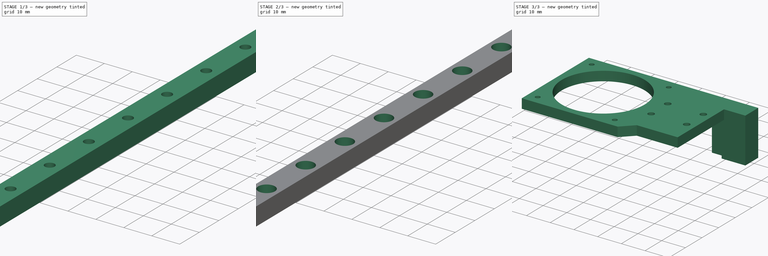
[diagram: build sequence overview — one tinted view per stage of 3, left to right]
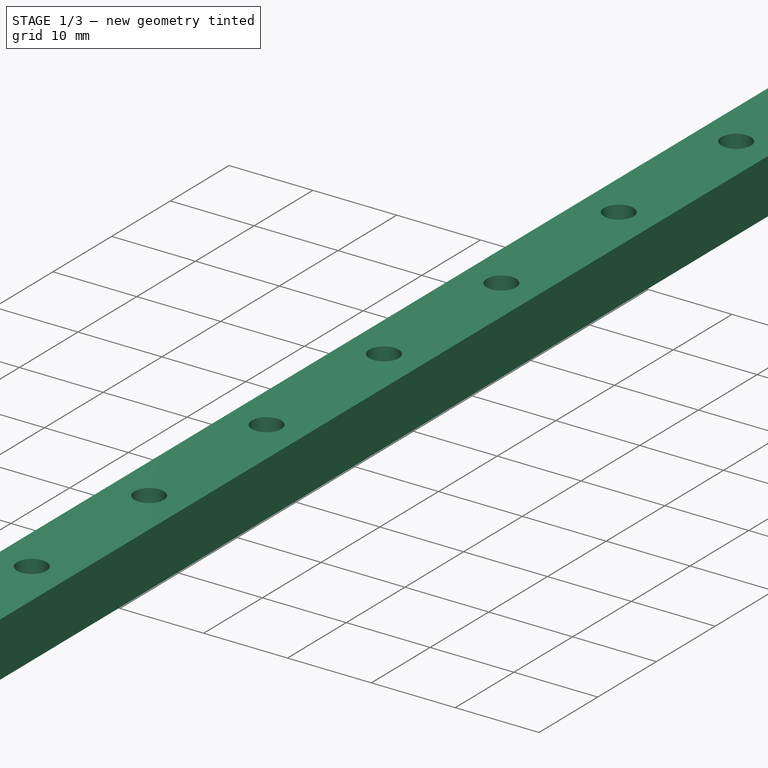
[diagram: stage 1 of 3 — iso view after this stage's code; geometry added in this stage tinted green]
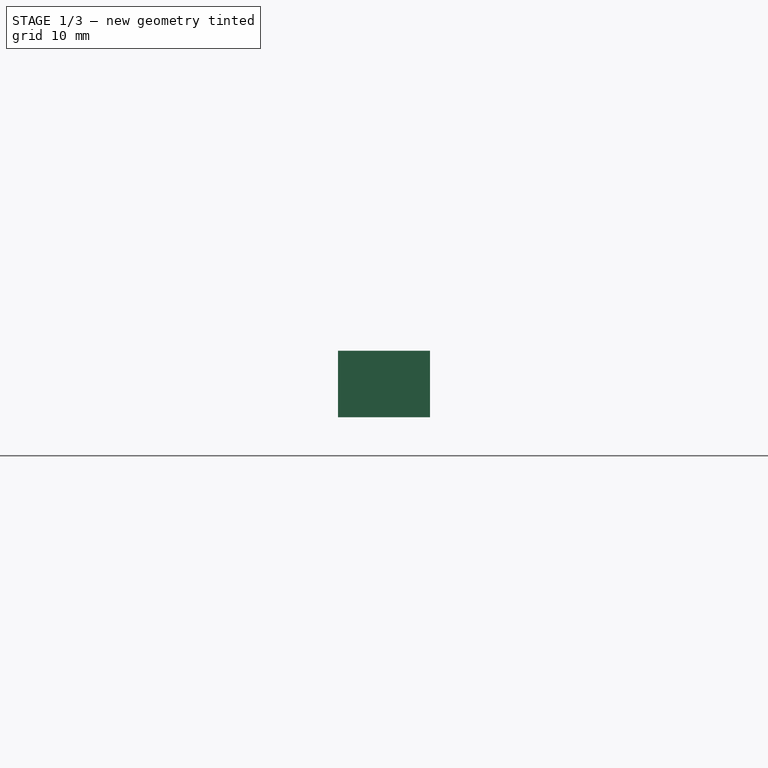
[diagram: stage 1 of 3 — front view after this stage's code; geometry added in this stage tinted green]
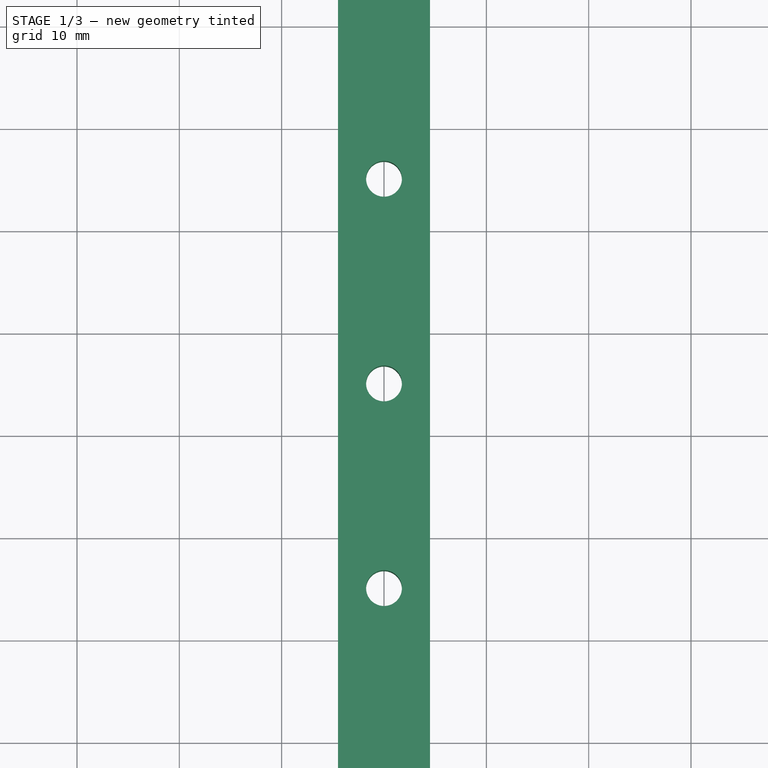
[diagram: stage 1 of 3 — top view after this stage's code; geometry added in this stage tinted green]
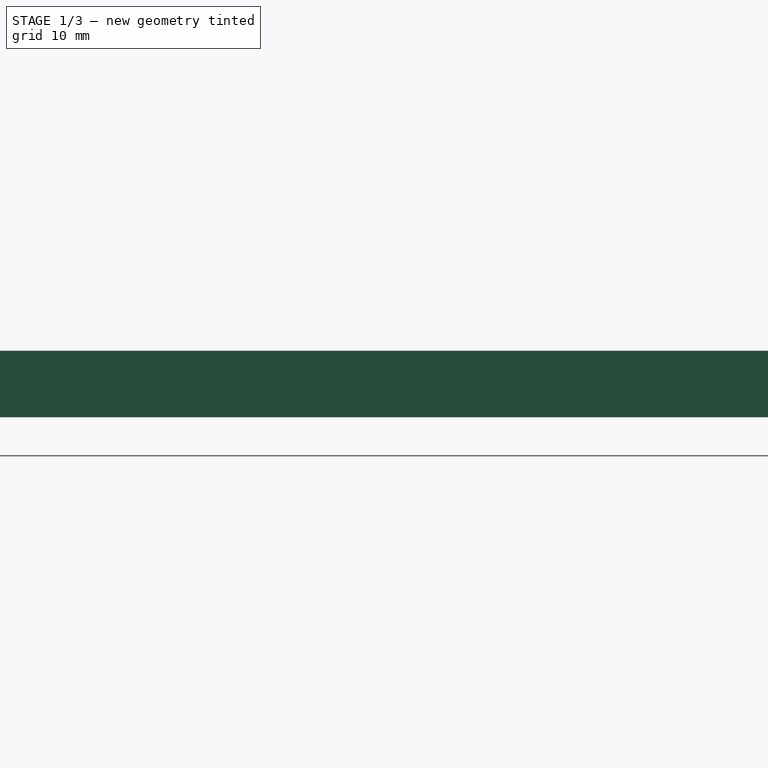
[diagram: stage 1 of 3 — right view after this stage's code; geometry added in this stage tinted green]
FCSTD DOCUMENT  (FreeCAD 0.21R33668 +26 (Git))
Label: Y_Joystick
License: All rights reserved
LicenseURL: http://en.wikipedia.org/wiki/All_rights_reserved
objects: Sketcher::SketchObject×6, PartDesign::Pad×4, Spreadsheet::Sheet×4, PartDesign::Pocket×2, PartDesign::LinearPattern×2, PartDesign::ShapeBinder×1, PartDesign::Body×1
note: 22 computed .brp shape members not serialized (recipe doc carries the construction recipe); baked Part::Feature solids carry a one-line shape summary decoded from their .brp

FEATURE [Sketcher::SketchObject] Sketch
  FullyConstrained = true
  MapMode = 5
  Support = -> [XY_Plane]
  expr: Constraints[10] = <<Rail>>.RW
  expr: Constraints[9] = <<Rail>>.RL
  sketch-geometry (4):
    g0: LineSegment StartX=4.5 StartY=0 StartZ=0 EndX=-4.5 EndY=0 EndZ=0
    g1: LineSegment StartX=-4.5 StartY=0 StartZ=0 EndX=-4.5 EndY=250 EndZ=0
    g2: LineSegment StartX=-4.5 StartY=250 StartZ=0 EndX=4.5 EndY=250 EndZ=0
    g3: LineSegment StartX=4.5 StartY=250 StartZ=0 EndX=4.5 EndY=0 EndZ=0
  constraints (11):
    c: Coincident(g0,g1)
    c: Coincident(g1,g2)
    c: Coincident(g2,g3)
    c: Coincident(g3,g0)
    c: Horizontal(g0)
    c: Horizontal(g2)
    c: Vertical(g1)
    c: Vertical(g3)
    c: Symmetric(g0,g0,g-1)
    c: DistanceY(g3,g3) = 250
    c: DistanceX(g0,g0) = 9
FEATURE [PartDesign::Pad] Pad
  Direction = (0,0,1)
  Length = 6.5
  Length2 = 100
  Profile = -> Sketch
  Reversed = true
  Type = 0
  expr: Length = <<Rail>>.RH
FEATURE [Sketcher::SketchObject] Sketch001
  FullyConstrained = true
  MapMode = 5
  Support = -> [XY_Plane]
  expr: Constraints[1] = <<Rail>>.RFSO
  expr: Constraints[2] = <<Rail>>.SBD / 2
  sketch-geometry (1):
    g0: Circle CenterX=0 CenterY=5 CenterZ=0 NormalX=0 NormalY=0 NormalZ=1 AngleXU=0 Radius=1.75
  constraints (3):
    c: PointOnObject(g0,g-2)
    c: DistanceY(g0) = 5
    c: Radius(g0) = 1.75
FEATURE [PartDesign::Pocket] Pocket
  BaseFeature = -> Pad
  Direction = (1,1,1)
  Length = 6.5
  Length2 = 100
  Profile = -> Sketch001
  Type = 0
  expr: Length = <<Rail>>.RH
FEATURE [PartDesign::LinearPattern] LinearPattern
  BaseFeature = -> Pocket
  Direction = -> Y_Axis
  Length = 240
  Occurrences = 3
  Originals = -> [Pocket]
  expr: Length = <<Rail>>.RL - <<Rail>>.RFSO * 2
  expr: Occurrences = (<<Rail>>.RL - <<Rail>>.RFSO * 2) / <<Rail>>.RS2SO + 1
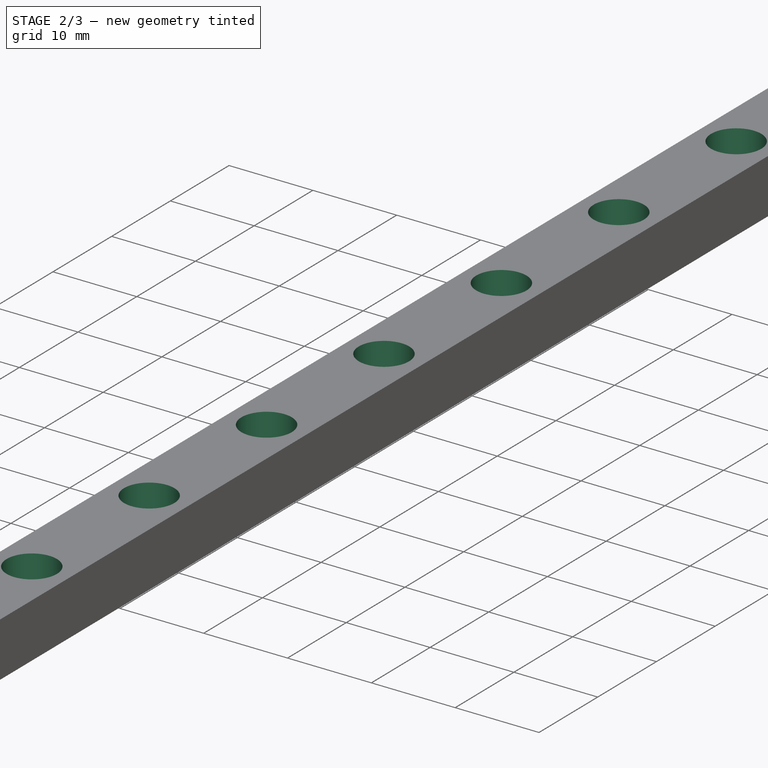
[diagram: stage 2 of 3 — iso view after this stage's code; geometry added in this stage tinted green]
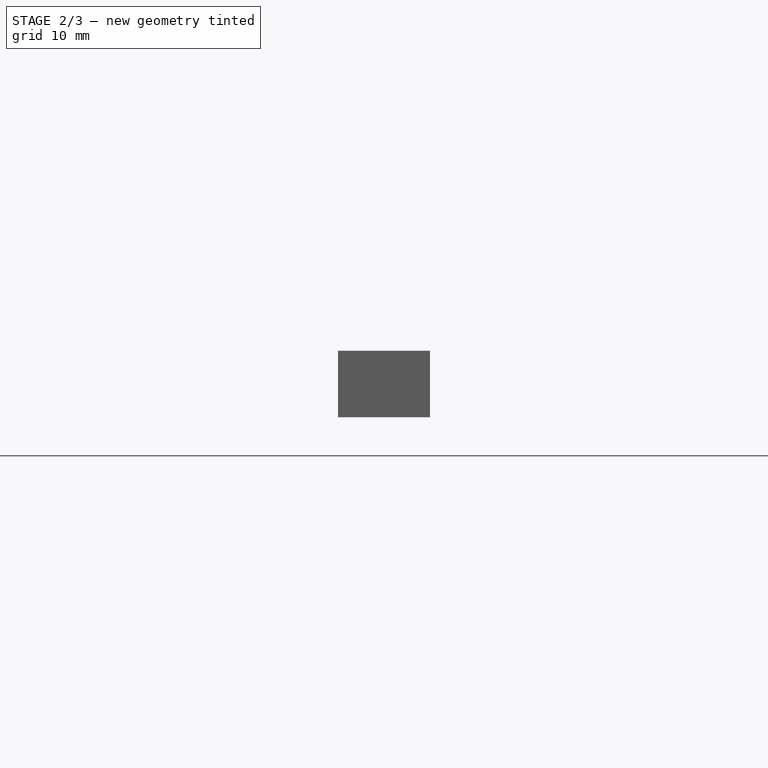
[diagram: stage 2 of 3 — front view after this stage's code; geometry added in this stage tinted green]
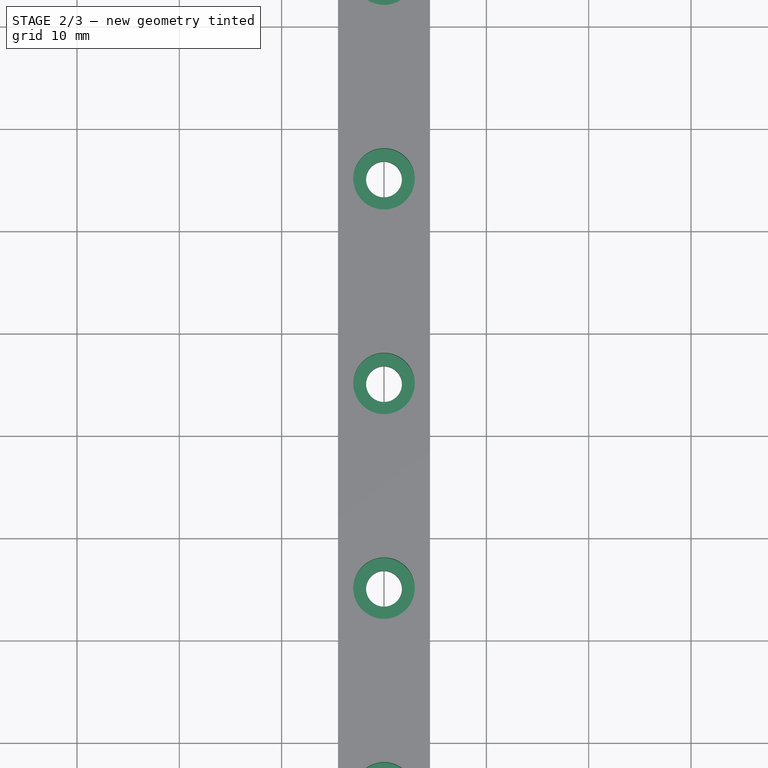
[diagram: stage 2 of 3 — top view after this stage's code; geometry added in this stage tinted green]
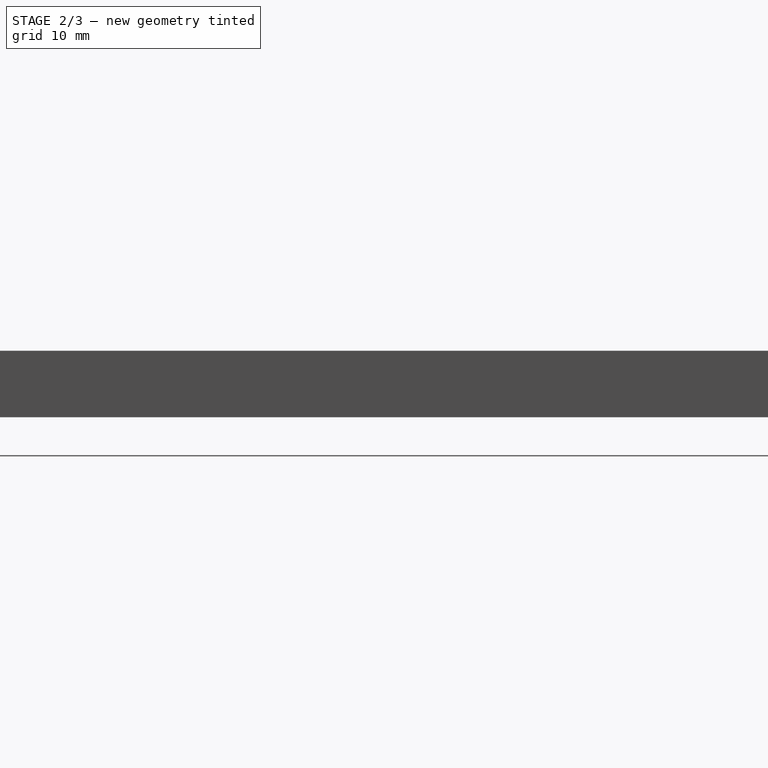
[diagram: stage 2 of 3 — right view after this stage's code; geometry added in this stage tinted green]
FEATURE [Sketcher::SketchObject] Sketch002
  FullyConstrained = true
  MapMode = 5
  Support = -> [XY_Plane]
  expr: Constraints[0] = <<Rail>>.SHD / 2
  expr: Constraints[2] = <<Rail>>.RFSO
  sketch-geometry (1):
    g0: Circle CenterX=0 CenterY=5 CenterZ=0 NormalX=0 NormalY=0 NormalZ=1 AngleXU=0 Radius=3
  constraints (3):
    c: Radius(g0) = 3
    c: PointOnObject(g0,g-2)
    c: DistanceY(g-1,g0) = 5
FEATURE [PartDesign::Pocket] Pocket001
  BaseFeature = -> LinearPattern
  Direction = (1,1,1)
  Length = 3.5
  Length2 = 100
  Profile = -> Sketch002
  Type = 0
  expr: Length = <<Rail>>.RSHI
FEATURE [PartDesign::LinearPattern] LinearPattern001
  BaseFeature = -> Pocket001
  Direction = -> Y_Axis
  Length = 240
  Occurrences = 3
  Originals = -> [Pocket001]
  expr: Length = <<Rail>>.RL - <<Rail>>.RFSO * 2
  expr: Occurrences = (<<Rail>>.RL - <<Rail>>.RFSO * 2) / <<Rail>>.RS2SO + 1
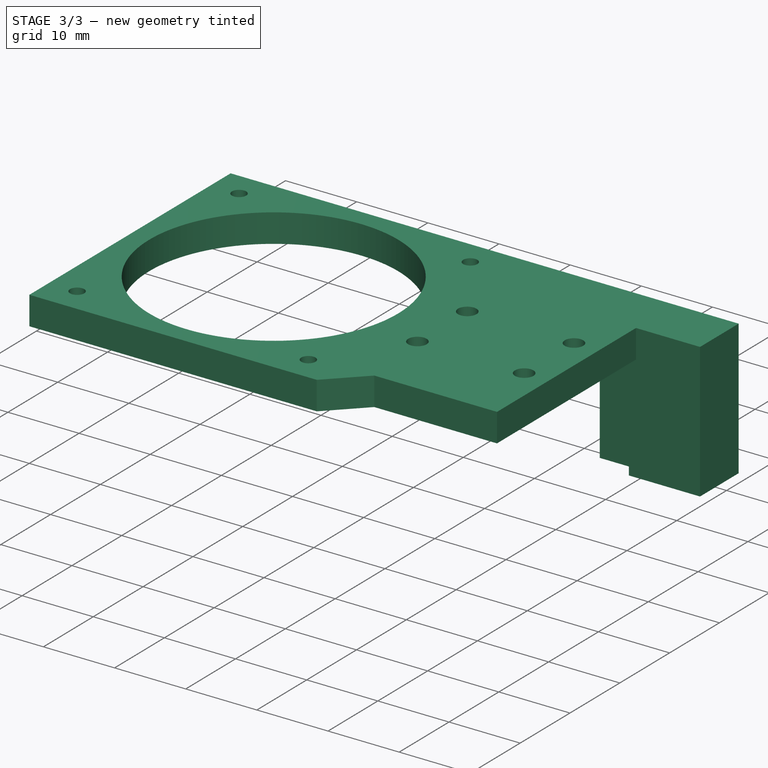
[diagram: stage 3 of 3 — iso view after this stage's code; geometry added in this stage tinted green]
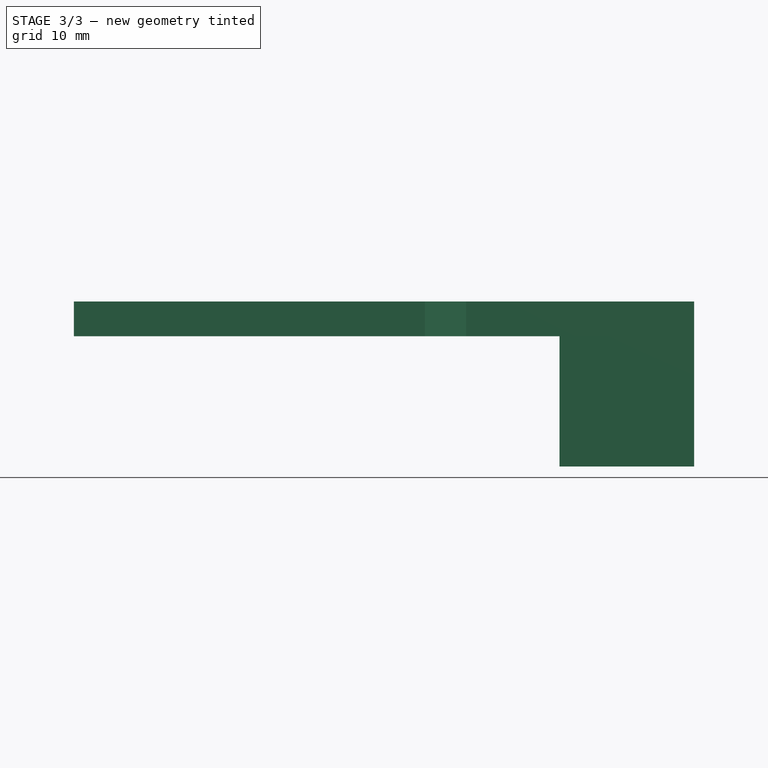
[diagram: stage 3 of 3 — front view after this stage's code; geometry added in this stage tinted green]
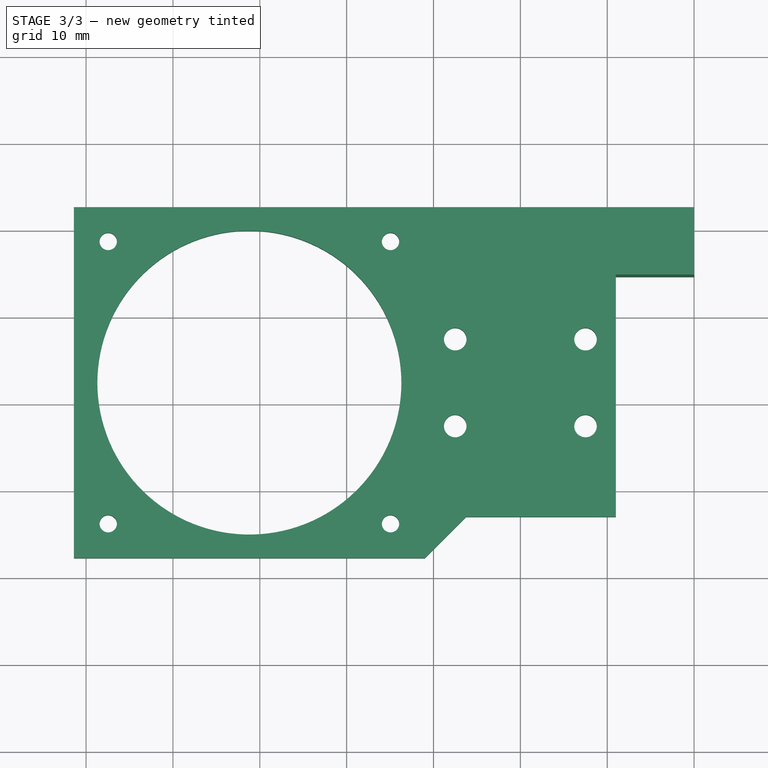
[diagram: stage 3 of 3 — top view after this stage's code; geometry added in this stage tinted green]
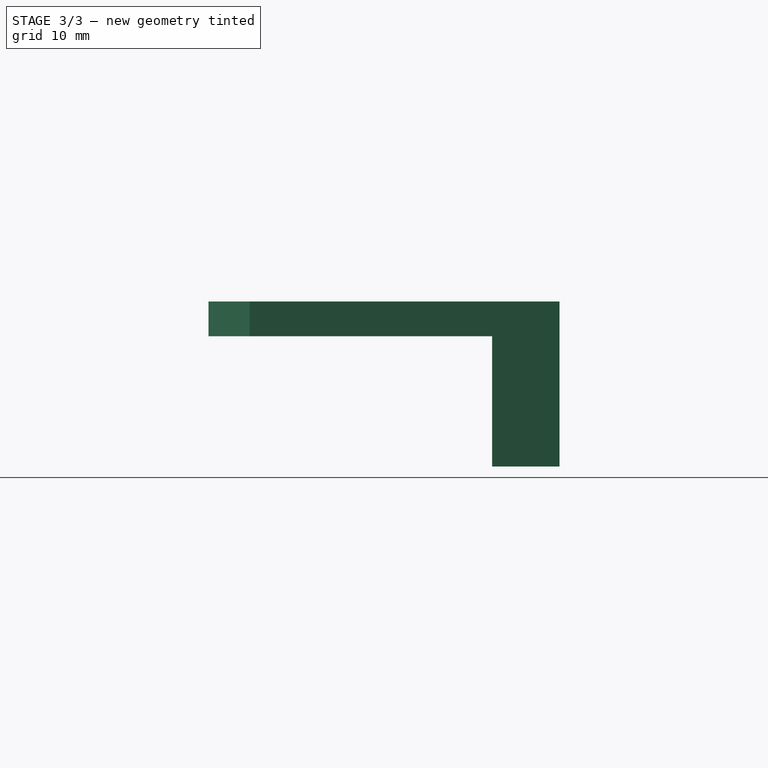
[diagram: stage 3 of 3 — right view after this stage's code; geometry added in this stage tinted green]
FEATURE [Sketcher::SketchObject] Sketch005
  AttachmentOffset = pos=(0,0,-4.5) rot=(0,0,1;0rad)
  FullyConstrained = true
  MapMode = 5
  Placement = pos=(0,0,-4.5) rot=(0,0,1;0rad)
  Support = -> [XY_Plane]
  expr: .AttachmentOffset.Base.z = -(<<Rail>>.RH - <<Rail>>.RB2HB)
  expr: Constraints[10] = <<Rail>>.Axial_Offset
  expr: Constraints[11] = <<Rail>>.SBD / 2
  expr: Constraints[12] = <<Rail>>.SBD / 2
  expr: Constraints[13] = <<Rail>>.SBD / 2
  expr: Constraints[14] = <<Rail>>.SBD / 2
  expr: Constraints[29] = <<Rail>>.HSL
  expr: Constraints[30] = <<Rail>>.HSW
  expr: Constraints[7] = <<Rail>>.HL
  expr: Constraints[8] = <<Rail>>.HW
  sketch-geometry (13):
    g0: LineSegment StartX=-10 StartY=146.675 StartZ=0 EndX=10 EndY=146.675 EndZ=0
    g1: LineSegment StartX=10 StartY=146.675 StartZ=0 EndX=10 EndY=117.775 EndZ=0
    g2: LineSegment StartX=10 StartY=117.775 StartZ=0 EndX=-10 EndY=117.775 EndZ=0
    g3: LineSegment StartX=-10 StartY=117.775 StartZ=0 EndX=-10 EndY=146.675 EndZ=0
    g4: Circle CenterX=-7.5 CenterY=137.225 CenterZ=0 NormalX=0 NormalY=0 NormalZ=1 AngleXU=0 Radius=1.75
    g5: Circle CenterX=7.5 CenterY=137.225 CenterZ=0 NormalX=0 NormalY=0 NormalZ=1 AngleXU=0 Radius=1.75
    g6: Circle CenterX=7.5 CenterY=127.225 CenterZ=0 NormalX=0 NormalY=0 NormalZ=1 AngleXU=0 Radius=1.75
    g7: Circle CenterX=-7.5 CenterY=127.225 CenterZ=0 NormalX=0 NormalY=0 NormalZ=1 AngleXU=0 Radius=1.75
    g8: LineSegment StartX=-7.5 StartY=137.225 StartZ=0 EndX=7.5 EndY=137.225 EndZ=0
    g9: LineSegment StartX=7.5 StartY=137.225 StartZ=0 EndX=7.5 EndY=127.225 EndZ=0
    g10: LineSegment StartX=7.5 StartY=127.225 StartZ=0 EndX=-7.5 EndY=127.225 EndZ=0
    g11: LineSegment StartX=-7.5 StartY=127.225 StartZ=0 EndX=-7.5 EndY=137.225 EndZ=0
    g12: GeomPoint X=5.8e-15 Y=132.225 Z=0
  constraints (31):
    c: Coincident(g0,g1)
    c: Coincident(g1,g2)
    c: Coincident(g2,g3)
    c: Coincident(g3,g0)
    c: Horizontal(g0)
    c: Vertical(g1)
    c: Vertical(g3)
    c: DistanceY(g1,g1) = 28.9
    c: DistanceX(g0,g0) = 20
    c: Symmetric(g2,g1,g-2)
    c: DistanceY(g1) = 117.775
    c: Radius(g4) = 1.75
    c: Radius(g5) = 1.75
    c: Radius(g6) = 1.75
    c: Radius(g7) = 1.75
    c: Coincident(g8,g9)
    c: Coincident(g9,g10)
    c: Coincident(g10,g11)
    c: Coincident(g11,g8)
    c: Horizontal(g8)
    c: Horizontal(g10)
    c: Vertical(g9)
    c: Vertical(g11)
    c: Coincident(g8,g4)
    c: Coincident(g9,g6)
    c: Coincident(g5,g8)
    c: Coincident(g7,g10)
    c: Symmetric(g5,g7,g12)
    c: Symmetric(g0,g2,g12)
    c: DistanceY(g9,g9) = 10
    c: DistanceX(g8,g8) = 15
FEATURE [PartDesign::Pad] Pad002
  BaseFeature = -> LinearPattern001
  Direction = (0,0,1)
  Length = 8
  Length2 = 100
  Profile = -> Sketch005
  Type = 0
  expr: Length = <<Rail>>.HH
FEATURE [PartDesign::ShapeBinder] ReferencePad002
  Placement = pos=(0,0,8) rot=(0,0,1;0rad)
  Support = -> [Pad002]
  TraceSupport = false
FEATURE [Sketcher::SketchObject] Sketch024
  ExternalGeometry = -> [ReferencePad002]
  FullyConstrained = true
  MapMode = 5
  Placement = pos=(0,0,3.5) rot=(0,0,1;0rad)
  Support = -> [ReferencePad002]
  expr: Constraints[16] = <<Joystick>>.BD
  expr: Constraints[17] = <<Joystick>>.BW
  expr: Constraints[38] = <<Joystick>>.JD
  expr: Constraints[56] = <<Screws>>.B3
  expr: Constraints[57] = <<Screws>>.B3
  expr: Constraints[58] = <<Screws>>.B3
  expr: Constraints[59] = <<Screws>>.B3
  expr: Constraints[60] = <<Joystick>>.SBD
  expr: Constraints[61] = <<Joystick>>.SBD
  expr: Constraints[62] = <<Joystick>>.SBD
  expr: Constraints[63] = <<Joystick>>.SBD
  expr: Constraints[64] = <<Joystick>>.SD
  expr: Constraints[70] = <<Joystick>>.SD
  sketch-geometry (29):
    g0: LineSegment StartX=-11 StartY=152.425 StartZ=0 EndX=11 EndY=152.425 EndZ=0
    g1: LineSegment StartX=11 StartY=152.425 StartZ=0 EndX=11 EndY=116.775 EndZ=0
    g2: LineSegment StartX=11 StartY=116.775 StartZ=0 EndX=-11 EndY=116.775 EndZ=0
    g3: LineSegment StartX=-11 StartY=116.775 StartZ=0 EndX=-11 EndY=152.425 EndZ=0
    g4: LineSegment StartX=-51.4 StartY=152.425 StartZ=0 EndX=-11 EndY=152.425 EndZ=0
    g5: LineSegment StartX=-11 StartY=152.425 StartZ=0 EndX=-11 EndY=112.025 EndZ=0
    g6: LineSegment StartX=-11 StartY=112.025 StartZ=0 EndX=-51.4 EndY=112.025 EndZ=0
    g7: LineSegment StartX=-51.4 StartY=112.025 StartZ=0 EndX=-51.4 EndY=152.425 EndZ=0
    g8: GeomPoint X=7.3e-15 Y=132.225 Z=0
    g9: LineSegment StartX=7.3e-15 StartY=132.225 StartZ=0 EndX=-10 EndY=132.225 EndZ=0
    g10: LineSegment StartX=11 StartY=152.425 StartZ=0 EndX=20 EndY=152.425 EndZ=0
    g11: LineSegment StartX=20 StartY=152.425 StartZ=0 EndX=20 EndY=144.675 EndZ=0
    g12: LineSegment StartX=20 StartY=144.675 StartZ=0 EndX=11 EndY=144.675 EndZ=0
    g13: LineSegment StartX=11 StartY=144.675 StartZ=0 EndX=11 EndY=152.425 EndZ=0
    g14: LineSegment StartX=11 StartY=144.675 StartZ=0 EndX=11 EndY=116.775 EndZ=0
    g15: Circle CenterX=-31.2 CenterY=132.225 CenterZ=0 NormalX=0 NormalY=0 NormalZ=1 AngleXU=0 Radius=17.5
    g16: LineSegment StartX=-51.4 StartY=152.425 StartZ=0 EndX=-11 EndY=152.425 EndZ=0
    g17: LineSegment StartX=-51.4 StartY=152.425 StartZ=0 EndX=-51.4 EndY=112.025 EndZ=0
    g18: LineSegment StartX=-51.4 StartY=112.025 StartZ=0 EndX=-11 EndY=112.025 EndZ=0
    g19: LineSegment StartX=-11 StartY=112.025 StartZ=0 EndX=-6.25 EndY=116.775 EndZ=0
    g20: LineSegment StartX=-6.25 StartY=116.775 StartZ=0 EndX=11 EndY=116.775 EndZ=0
    g21: Circle CenterX=-7.5 CenterY=137.225 CenterZ=0 NormalX=0 NormalY=0 NormalZ=1 AngleXU=0 Radius=1.3
    g22: Circle CenterX=-7.5 CenterY=127.225 CenterZ=0 NormalX=0 NormalY=0 NormalZ=1 AngleXU=0 Radius=1.3
    g23: Circle CenterX=7.5 CenterY=127.225 CenterZ=0 NormalX=0 NormalY=0 NormalZ=1 AngleXU=0 Radius=1.3
    g24: Circle CenterX=7.5 CenterY=137.225 CenterZ=0 NormalX=0 NormalY=0 NormalZ=1 AngleXU=0 Radius=1.3
    g25: Circle CenterX=-47.45 CenterY=148.475 CenterZ=0 NormalX=0 NormalY=0 NormalZ=1 AngleXU=0 Radius=1
    g26: Circle CenterX=-14.95 CenterY=148.475 CenterZ=0 NormalX=0 NormalY=0 NormalZ=1 AngleXU=0 Radius=1
    g27: Circle CenterX=-14.95 CenterY=115.975 CenterZ=0 NormalX=0 NormalY=0 NormalZ=1 AngleXU=0 Radius=1
    g28: Circle CenterX=-47.45 CenterY=115.975 CenterZ=0 NormalX=0 NormalY=0 NormalZ=1 AngleXU=0 Radius=1
  constraints (71):
    c: Coincident(g0,g1)
    c: Coincident(g1,g2)
    c: Coincident(g2,g3)
    c: Coincident(g3,g0)
    c: Horizontal(g0)
    c: Horizontal(g2)
    c: Vertical(g1)
    c: Vertical(g3)
    c: Coincident(g4,g5)
    c: Coincident(g5,g6)
    c: Coincident(g6,g7)
    c: Coincident(g7,g4)
    c: Horizontal(g4)
    c: Horizontal(g6)
    c: Vertical(g5)
    c: Vertical(g7)
    c: DistanceX(g4,g4) = 40.4
    c: DistanceY(g7,g7) = 40.4
    c: Symmetric(g-10,g-8,g8)
    c: Coincident(g9,g8)
    c: PointOnObject(g9,g-8)
    c: Symmetric(g4,g5,g9)
    c: DistanceY(g1,g-10) = 1
    c: DistanceX(g-10,g2) = 1
    c: Coincident(g10,g11)
    c: Coincident(g11,g12)
    c: Coincident(g12,g13)
    c: Coincident(g13,g10)
    c: Horizontal(g10)
    c: Horizontal(g12)
    c: Vertical(g11)
    c: Vertical(g13)
    c: Coincident(g10,g0)
    c: Coincident(g14,g12)
    c: Coincident(g14,g2)
    c: DistanceY(g12,g-10) = 2
    c: DistanceX(g-9,g11) = 30
    c: DistanceX(g0,g-9) = 1
    c: Diameter(g15) = 35
    c: Symmetric(g6,g4,g15)
    c: Coincident(g16,g4)
    c: Coincident(g16,g4)
    c: Coincident(g17,g16)
    c: Coincident(g17,g6)
    c: Coincident(g18,g17)
    c: Coincident(g18,g5)
    c: Coincident(g0,g16)
    c: Coincident(g19,g18)
    c: PointOnObject(g19,g2)
    c: Angle(g19,g18) = 2.35619
    c: Coincident(g20,g19)
    c: Coincident(g20,g14)
    c: Coincident(g21,g-3)
    c: Coincident(g22,g-6)
    c: Coincident(g23,g-5)
    c: Coincident(g24,g-4)
    c: Diameter(g21) = 2.6
    c: Diameter(g24) = 2.6
    c: Diameter(g23) = 2.6
    c: Diameter(g22) = 2.6
    c: Diameter(g26) = 2
    c: Diameter(g25) = 2
    c: Diameter(g28) = 2
    c: Diameter(g27) = 2
    c: DistanceX(g25,g26) = 32.5
    c: Horizontal(g26,g25)
    c: Vertical(g26,g27)
    c: Horizontal(g28,g27)
    c: Vertical(g28,g25)
    c: Symmetric(g28,g26,g15)
    c: DistanceY(g27,g26) = 32.5
FEATURE [PartDesign::Pad] Pad013
  Direction = (0,0,1)
  Length = 4
  Length2 = 10
  Placement = pos=(0,0,8) rot=(0,0,1;0rad)
  Profile = -> Sketch024
  Type = 0
  expr: Length = <<Rail>>.RSLH
FEATURE [Sketcher::SketchObject] Sketch025
  ExternalGeometry = -> [Pad013]
  FullyConstrained = true
  MapMode = 5
  Placement = pos=(0,0,3.5) rot=(1,0,0;3.14159rad)
  Support = -> [Pad013]
  expr: Constraints[12] = <<Rail>>.HL
  expr: Constraints[13] = <<Rail>>.HW
  expr: Constraints[34] = <<Rail>>.RW
  sketch-geometry (19):
    g0: LineSegment StartX=-11 StartY=-112.025 StartZ=0 EndX=-11 EndY=-152.425 EndZ=0
    g1: LineSegment StartX=-10 StartY=-146.675 StartZ=0 EndX=10 EndY=-146.675 EndZ=0
    g2: LineSegment StartX=10 StartY=-146.675 StartZ=0 EndX=10 EndY=-117.775 EndZ=0
    g3: LineSegment StartX=10 StartY=-117.775 StartZ=0 EndX=-10 EndY=-117.775 EndZ=0
    g4: LineSegment StartX=-10 StartY=-117.775 StartZ=0 EndX=-10 EndY=-146.675 EndZ=0
    g5: GeomPoint X=-1e-16 Y=-132.225 Z=0
    g6: LineSegment StartX=20 StartY=-152.425 StartZ=0 EndX=10 EndY=-152.425 EndZ=0
    g7: LineSegment StartX=10 StartY=-152.425 StartZ=0 EndX=10 EndY=-144.675 EndZ=0
    g8: LineSegment StartX=10 StartY=-144.675 StartZ=0 EndX=20 EndY=-144.675 EndZ=0
    g9: LineSegment StartX=20 StartY=-144.675 StartZ=0 EndX=20 EndY=-152.425 EndZ=0
    g10: LineSegment StartX=-4.5 StartY=-146.675 StartZ=0 EndX=4.5 EndY=-146.675 EndZ=0
    g11: LineSegment StartX=4.5 StartY=-146.675 StartZ=0 EndX=4.5 EndY=-152.425 EndZ=0
    g12: LineSegment StartX=4.5 StartY=-152.425 StartZ=0 EndX=-4.5 EndY=-152.425 EndZ=0
    g13: LineSegment StartX=-4.5 StartY=-152.425 StartZ=0 EndX=-4.5 EndY=-146.675 EndZ=0
    g14: LineSegment StartX=4.5 StartY=-152.425 StartZ=0 EndX=10 EndY=-152.425 EndZ=0
    g15: LineSegment StartX=10 StartY=-152.425 StartZ=0 EndX=10 EndY=-146.675 EndZ=0
    g16: LineSegment StartX=10 StartY=-146.675 StartZ=0 EndX=4.5 EndY=-146.675 EndZ=0
    g17: LineSegment StartX=4.5 StartY=-146.675 StartZ=0 EndX=4.5 EndY=-152.425 EndZ=0
    g18: LineSegment StartX=10 StartY=-146.675 StartZ=0 EndX=10 EndY=-144.675 EndZ=0
  constraints (48):
    c: Coincident(g0,g-11)
    c: Coincident(g0,g-9)
    c: Coincident(g1,g2)
    c: Coincident(g2,g3)
    c: Coincident(g3,g4)
    c: Coincident(g4,g1)
    c: Horizontal(g1)
    c: Horizontal(g3)
    c: Vertical(g2)
    c: Vertical(g4)
    c: Symmetric(g-12,g-10,g5)
    c: Symmetric(g2,g1,g5)
    c: DistanceY(g2,g2) = 28.9
    c: DistanceX(g3,g3) = 20
    c: Coincident(g6,g7)
    c: Coincident(g7,g8)
    c: Coincident(g8,g9)
    c: Coincident(g9,g6)
    c: Horizontal(g6)
    c: Horizontal(g8)
    c: Vertical(g7)
    c: Vertical(g9)
    c: Coincident(g6,g-7)
    c: PointOnObject(g7,g2)
    c: PointOnObject(g-8,g8)
    c: Coincident(g10,g11)
    c: Coincident(g11,g12)
    c: Coincident(g12,g13)
    c: Coincident(g13,g10)
    c: Horizontal(g10)
    c: Vertical(g11)
    c: Vertical(g13)
    c: PointOnObject(g10,g1)
    c: PointOnObject(g11,g-5)
    c: DistanceX(g12,g12) = 9
    c: Symmetric(g11,g12,g-2)
    c: Coincident(g14,g15)
    c: Coincident(g15,g16)
    c: Coincident(g16,g17)
    c: Coincident(g17,g14)
    c: Horizontal(g14)
    c: Horizontal(g16)
    c: Vertical(g15)
    c: Vertical(g17)
    c: Coincident(g14,g11)
    c: Coincident(g15,g1)
    c: Coincident(g18,g16)
    c: Coincident(g18,g8)
FEATURE [PartDesign::Pad] Pad014
  BaseFeature = -> Pad013
  Direction = (0,0,-1)
  Length = 15
  Length2 = 10
  Placement = pos=(0,0,8) rot=(0,0,1;0rad)
  Profile = -> Sketch025
  Type = 0
  expr: Length = Spreadsheet006.SensorExtrusionLength
FEATURE [PartDesign::Body] Body008  label="JXConnector"
  Group = -> [ReferencePad002,Sketch024,Pad013,Sketch025,Pad014]
  Origin = -> Origin008
  Tip = -> Pad014
FEATURE [Spreadsheet::Sheet] Spreadsheet  label="Rail"
  cells = A2='Axial Offset; B2(Axial_Offset)==(RL - HL * 0.5) * 0.5; A3='Screw; B3(Screw)='M 3x0.5Px8L; A4='Name; B4(Name)='MGN9C; A5='Screw Length; B5(SL)=8; A6='Rail Length RL (Axial); B6(RL)=250; A7='Rail Width RW; B7(RW)=9; A8='Rail Height RH; B8(RH)=6.5; A9='Rail First Screw Offset; B9(RFSO)=5; A10='Rail Screw To Screw Offset; B10(RS2SO)=20; A11='Rail Screw Head Inlet ; B11(RSHI)=3.5; A14='Head Height HH; B14(HH)==10 - 2; A15='Head Length HL (Axial); B15(HL)=28.9; A16='Head Width HW; B16(HW)=20; A17='Head Screw Width Spacing; B17(HSW)=15; A18='Head Screw Length Spacing; B18(HSL)=10; A19='Rail Base To Head Base; B19(RB2HB)=2; A20='Head Screw Depth; B20(HeadScrewDepth)==Spreadsheet009.B6 - 3.3; A22='Screw Head Diameter; B22(SHD)=6; A23='Screw Body Diameter; B23(SBD)=3.5; A25='Remaining Screw Length Head; B25(RSLH)==<<Screws>>.B6 - (B29 - 0.5); A26='Remaining Screw Length Rail; B26(RSLR)==<<Screws>>.B6 - (RH - B28); A28='Rail Screw Head Inlet Depth; B28==4.3 - 0.5; A29='Head Screw Body Inlet Depth; B29==5 - 0.5
FEATURE [Spreadsheet::Sheet] Spreadsheet005  label="Joystick"
  cells = A2='Demo Angles; A3='X; B3(DEMO_ANGLE_X)=0; A4='Y; B4(DEMO_ANGLE_Y)=1; A5='Z; B5(DEMO_ANGLE_Z)=0; A6='Angle; B6(DEMO_ANGLE)=0; A7='Screw Distance; B7(SD)=32.5; A9='Screw; B9='M2x12; A10='Screw Body Diameter; B10(SBD)=2; A11='Base Depth; B11(BD)=40.4; A12='Base Width; B12(BW)=40.4; A13='Base Height; B13(BH)=25.5; A14='Potentiometer Extrusion; B14(PE)==49.6 - 40.4; A15='Potentiometer Extrusion Depth; B15(PED)==BD + PE; A16='Potentiometer Extrusion Width; B16(PEW)==BD + 2 * PE; A18='Joystick Handle Height; B18(JHH)=39.5; A19='Joystick Diameter; B19(JD)=35; A22='Base to Joystick Top; B22(B2JT)=84
FEATURE [Spreadsheet::Sheet] Spreadsheet006  label="XJC"
  cells = A4='Sensor Extrusion Length; B4(SensorExtrusionLength)=15; A5='Screw Width; B5(SW)=32.5; A6='Top Width; B6(TW)==<<Joystick>>.PEW; A7='Top Strength; B7(TS)=5; A9='Depth Strength; B9(DS)=10
FEATURE [Spreadsheet::Sheet] Spreadsheet009  label="Screws"
  cells = A1='Screw Name; B1='M3x8; C1='M3x6; D1='M3x4; A2='Body Diameter Without Grooves; B2=2; C2=2; D2=2; A3='Body Diameter With Grooves; B3=2.6; C3=2.6; D3=2.6; A4='Body Diameter Gripping; B4==B3 - 0.1; C4==C3 - 0.1; D4==D3 - 0.1; A5='Body Diameter Sliding; B5==B3 + 0.1; C5==C3 + 0.1; D5==D3 + 0.1; A6='Body Height; B6==10.8 - B9; C6=6; D6=4; A7='Head Diameter; B7=5.4; C7=5.4; D7=5.4; A8='Head Diameter Sliding; B8==B7 + 0.2; C8==C7 + 0.2; D8==D7 + 0.2; A9='Head Height; B9=2.8; C9=2.8; D9=2.8
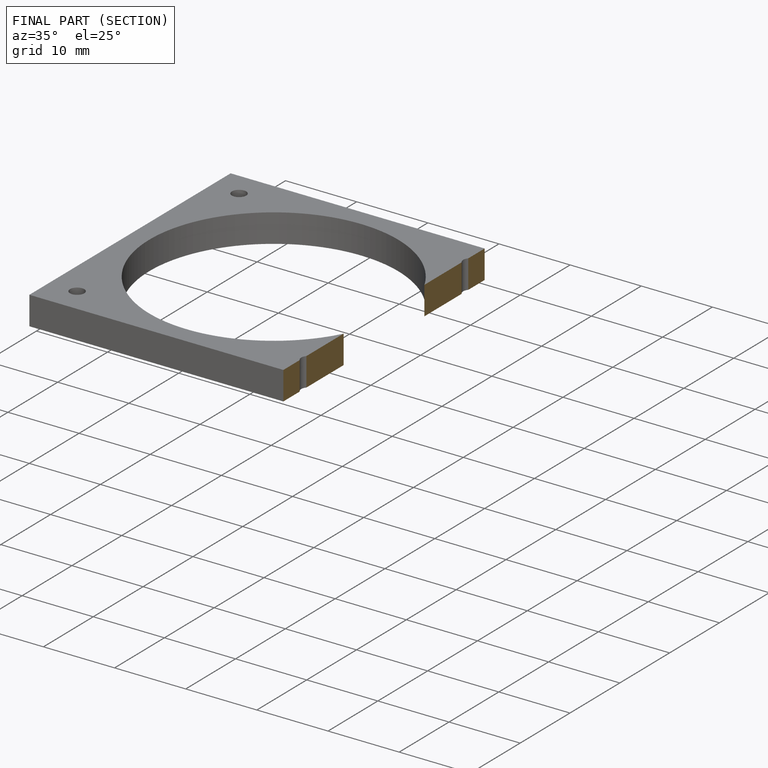
[diagram: finished part — half-section view (interior)]
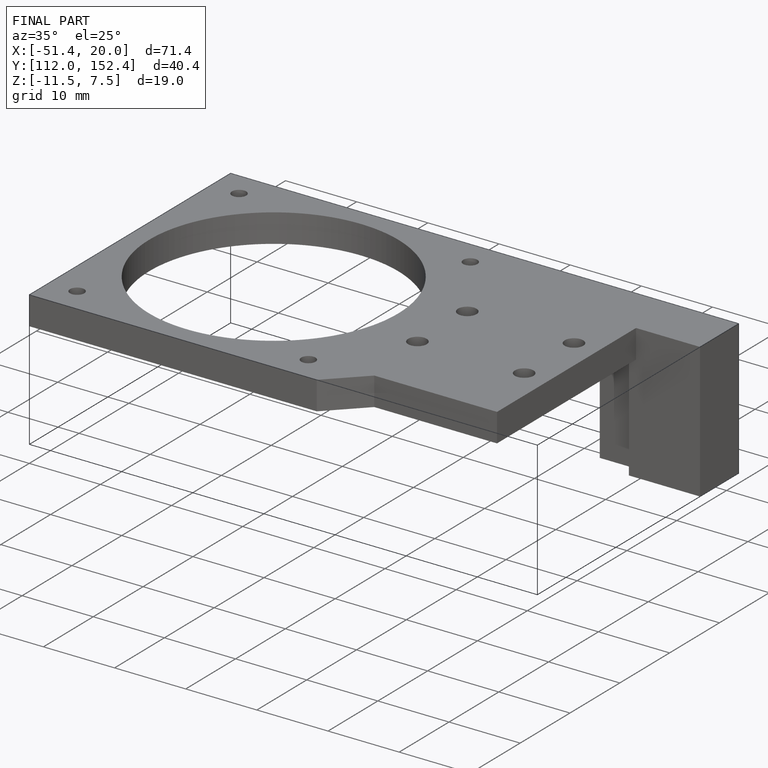
[diagram: finished part — iso view with bounding-box wireframe]
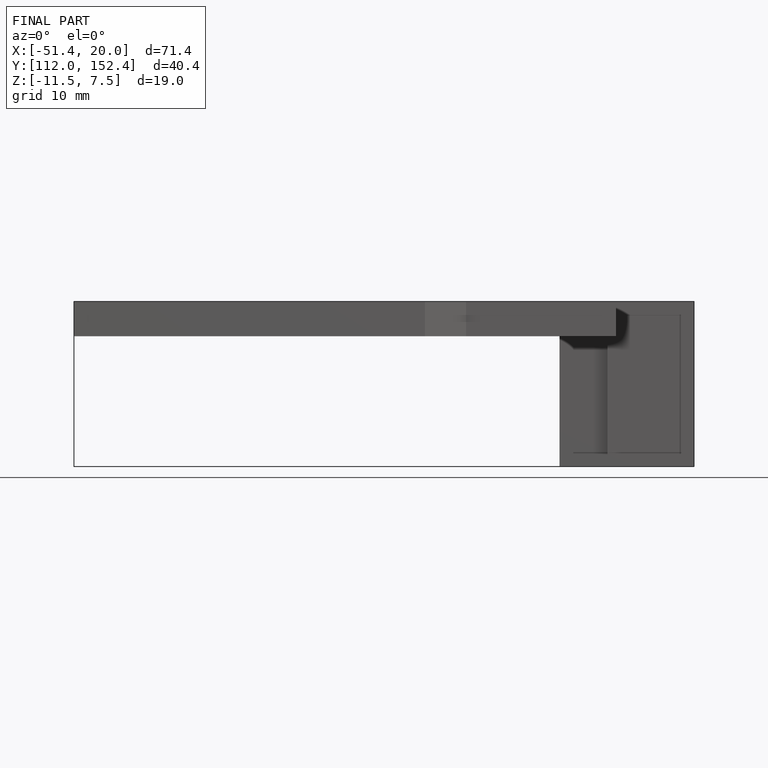
[diagram: finished part — front view with bounding-box wireframe]
